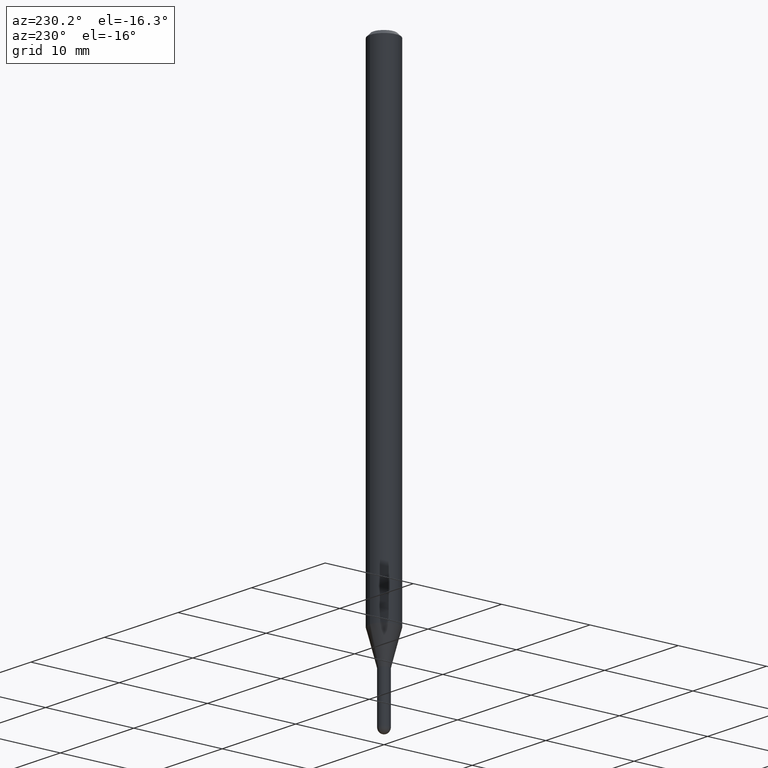
[diagram: clean part render]
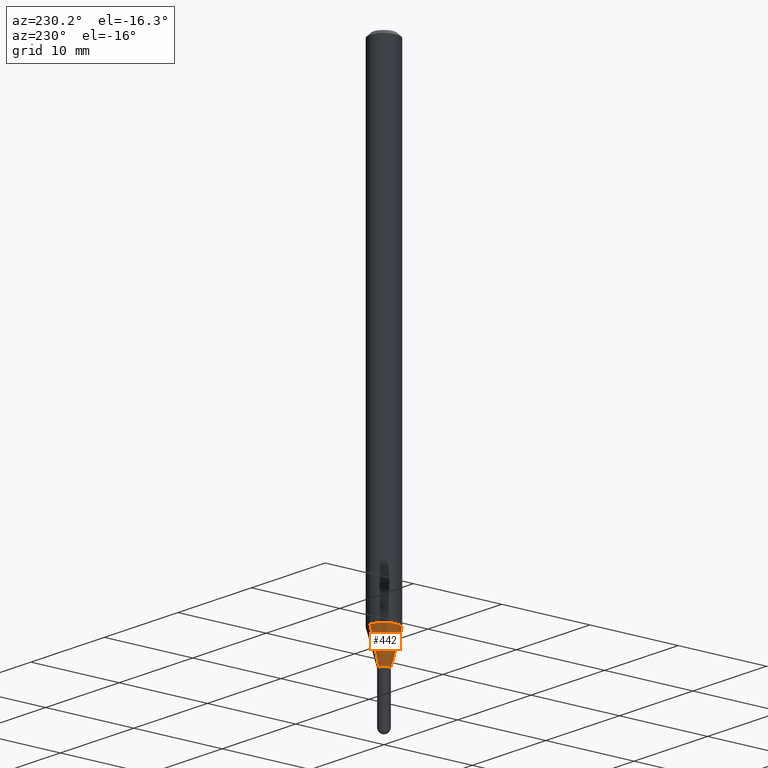
[diagram: same view with one face highlighted and labeled with its STEP entity id]
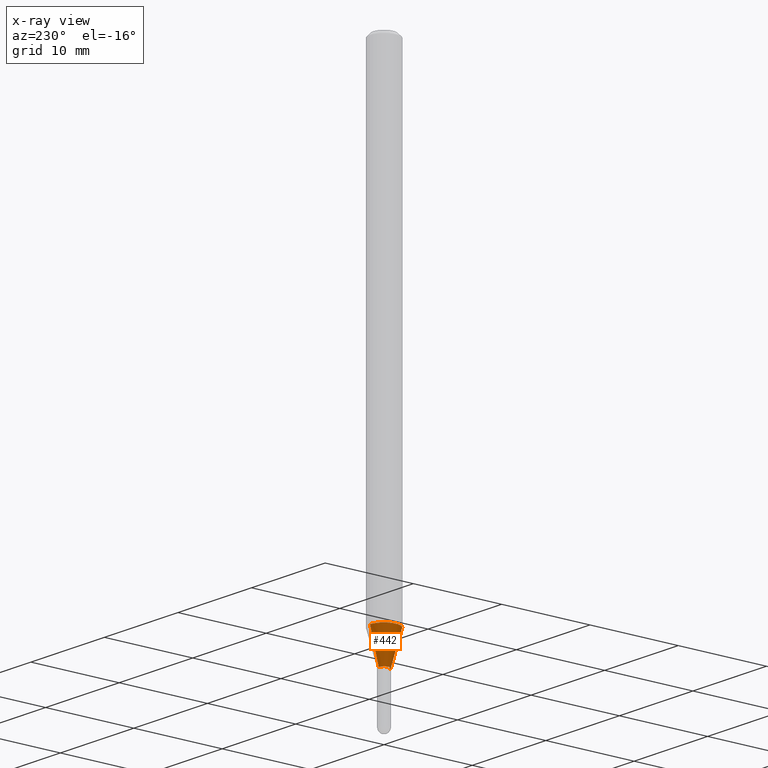
[diagram: x-ray of the same camera — body ghosted, the highlighted face saturated]
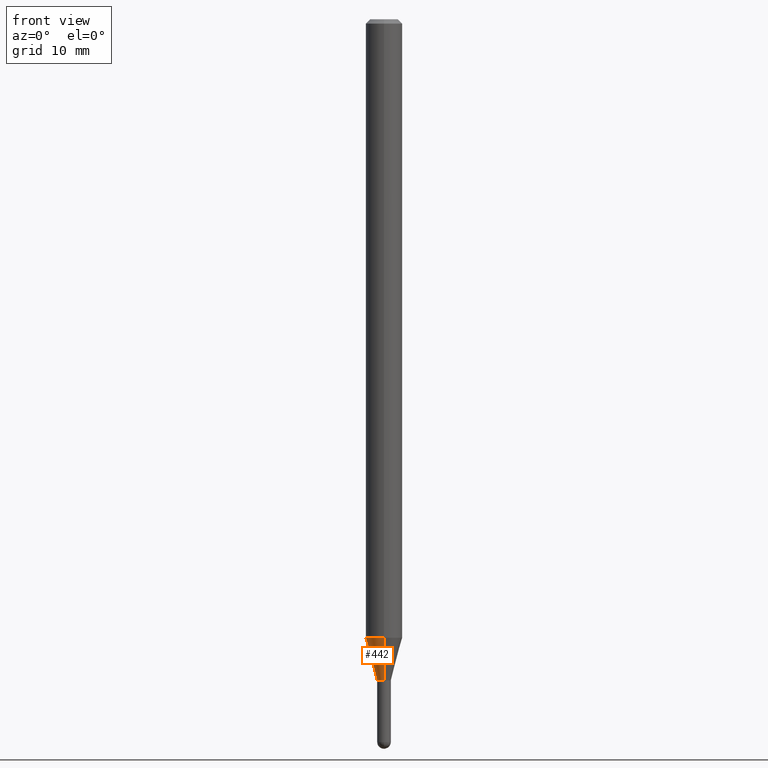
[diagram: same view with one face highlighted and labeled with its STEP entity id]
A machine part, auxiliary view. The second image highlights one B-rep face of the part: STEP entity #442.
The next image is the same camera in x-ray: the body ghosted, the highlighted face saturated — about 0% of this face is hidden behind the body in this view.
A second angle (front view) of the same face is appended — the face is thin or edge-on in the first view.
In plain terms, the highlighted conical surface has half-angle 15 deg.
Its self-contained STEP definition (entity closure, byte-faithful):
#10 = DIRECTION ( 'NONE',  ( -6.982962677686265922E-15, -1.000000000000000000, 0.000000000000000000 ) ) ;
#38 = DIRECTION ( 'NONE',  ( -1.807323732225379443E-15, -0.2588190451025252359, 0.9659258262890670910 ) ) ;
#72 = CARTESIAN_POINT ( 'NONE',  ( 5.538962882913950736E-29, -7.908239548996208593E-15, -2.265000000000000124 ) ) ;
#76 = CARTESIAN_POINT ( 'NONE',  ( -1.640996229255732643E-16, -0.02350000000000810815, -2.265000000000000124 ) ) ;
#83 = EDGE_CURVE ( 'NONE', #510, #176, #173, .T. ) ;
#89 = DIRECTION ( 'NONE',  ( -2.445458226452075287E-29, 3.491496489623050583E-15, 1.000000000000000000 ) ) ;
#98 = EDGE_LOOP ( 'NONE', ( #270, #410, #477, #99 ) ) ;
#99 = ORIENTED_EDGE ( 'NONE', *, *, #435, .F. ) ;
#119 = DIRECTION ( 'NONE',  ( -6.982962677686265922E-15, -1.000000000000000000, 0.000000000000000000 ) ) ;
#123 = CARTESIAN_POINT ( 'NONE',  ( 5.183026483306613636E-29, -7.400052299541085290E-15, -2.119450018504819067 ) ) ;
#127 = DIRECTION ( 'NONE',  ( -2.445458226452075287E-29, 3.491496489623050583E-15, 1.000000000000000000 ) ) ;
#156 = DIRECTION ( 'NONE',  ( -2.445458226452075287E-29, 3.491496489623050583E-15, 1.000000000000000000 ) ) ;
#173 = LINE ( 'NONE', #251, #195 ) ;
#176 = VERTEX_POINT ( 'NONE', #185 ) ;
#185 = CARTESIAN_POINT ( 'NONE',  ( 4.440892098501141880E-16, 0.06249999999999258232, -2.119450018504819511 ) ) ;
#195 = VECTOR ( 'NONE', #291, 39.37007874015748854 ) ;
#196 = AXIS2_PLACEMENT_3D ( 'NONE', #390, #156, #119 ) ;
#197 = VERTEX_POINT ( 'NONE', #500 ) ;
#207 = CARTESIAN_POINT ( 'NONE',  ( 3.055333763768974376E-16, 0.02349999999999228401, -2.265000000000000124 ) ) ;
#231 = AXIS2_PLACEMENT_3D ( 'NONE', #72, #89, #10 ) ;
#233 = LINE ( 'NONE', #392, #493 ) ;
#251 = CARTESIAN_POINT ( 'NONE',  ( 1.669775429036802928E-16, 0.02349999999999228747, -2.265000000000000124 ) ) ;
#270 = ORIENTED_EDGE ( 'NONE', *, *, #83, .F. ) ;
#291 = DIRECTION ( 'NONE',  ( 1.839019923739650408E-15, 0.2588190451025319527, 0.9659258262890650926 ) ) ;
#304 = CIRCLE ( 'NONE', #425, 0.06250000000000000000 ) ;
#312 = DIRECTION ( 'NONE',  ( -6.982962677686265922E-15, -1.000000000000000000, 4.370956789862821150E-15 ) ) ;
#344 = CONICAL_SURFACE ( 'NONE', #196, 0.02350000000000019781, 0.2617993877991575680 ) ;
#373 = EDGE_CURVE ( 'NONE', #510, #452, #439, .T. ) ;
#390 = CARTESIAN_POINT ( 'NONE',  ( 5.538962882913950736E-29, -7.908239548996208593E-15, -2.265000000000000124 ) ) ;
#392 = CARTESIAN_POINT ( 'NONE',  ( -1.640996229255732643E-16, -0.02350000000000810815, -2.265000000000000124 ) ) ;
#410 = ORIENTED_EDGE ( 'NONE', *, *, #373, .T. ) ;
#425 = AXIS2_PLACEMENT_3D ( 'NONE', #123, #127, #312 ) ;
#429 = FACE_OUTER_BOUND ( 'NONE', #98, .T. ) ;
#435 = EDGE_CURVE ( 'NONE', #176, #197, #304, .T. ) ;
#439 = CIRCLE ( 'NONE', #231, 0.02350000000000019781 ) ;
#442 = ADVANCED_FACE ( 'NONE', ( #429 ), #344, .T. ) ;
#452 = VERTEX_POINT ( 'NONE', #76 ) ;
#453 = EDGE_CURVE ( 'NONE', #452, #197, #233, .T. ) ;
#477 = ORIENTED_EDGE ( 'NONE', *, *, #453, .T. ) ;
#493 = VECTOR ( 'NONE', #38, 39.37007874015748143 ) ;
#500 = CARTESIAN_POINT ( 'NONE',  ( -4.364351673553400483E-16, -0.06250000000000742462, -2.119450018504819067 ) ) ;
#510 = VERTEX_POINT ( 'NONE', #207 ) ;